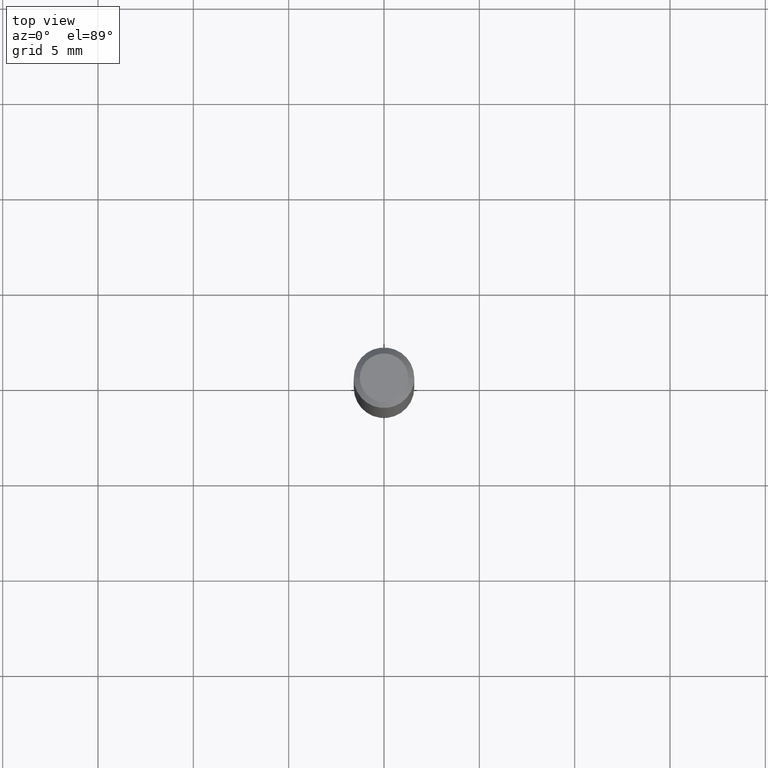
[diagram: clean part render]
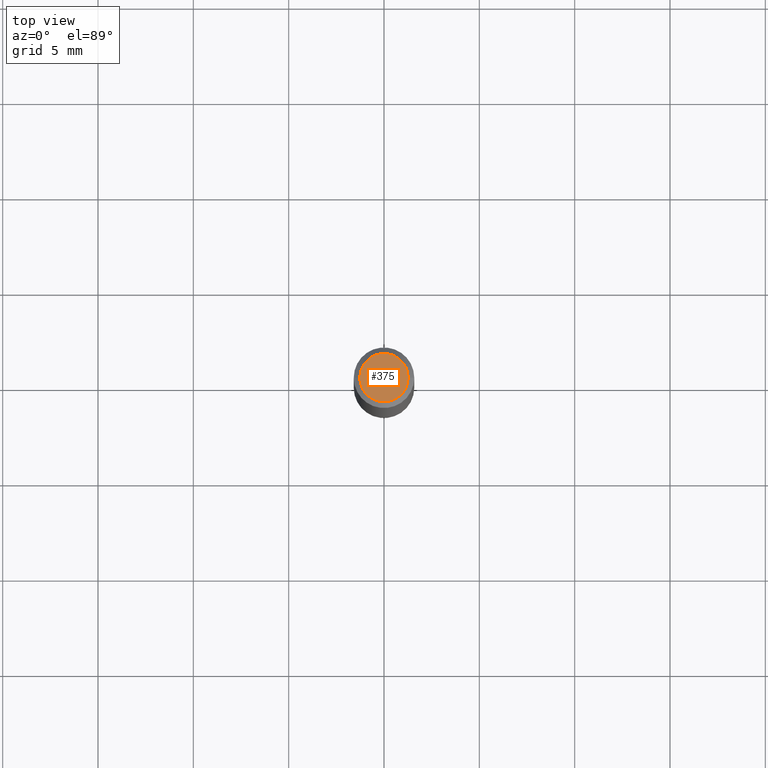
[diagram: same view with one face highlighted and labeled with its STEP entity id]
A machine part, top view. The second image highlights one B-rep face of the part: STEP entity #375.
In plain terms, the highlighted planar face has unit normal (0, -0, -1).
Its self-contained STEP definition (entity closure, byte-faithful):
#44 = DIRECTION ( 'NONE',  ( -2.445468806185136597E-29, 3.491481338843145583E-15, 1.000000000000000000 ) ) ;
#54 = AXIS2_PLACEMENT_3D ( 'NONE', #250, #44, #218 ) ;
#60 = DIRECTION ( 'NONE',  ( -1.000000000000000000, 6.982962677686265922E-15, -4.876176775795935793E-29 ) ) ;
#64 = DIRECTION ( 'NONE',  ( 2.438088387897960049E-29, -3.491481338843145188E-15, -1.000000000000000000 ) ) ;
#79 = ORIENTED_EDGE ( 'NONE', *, *, #374, .T. ) ;
#118 = VERTEX_POINT ( 'NONE', #138 ) ;
#123 = CIRCLE ( 'NONE', #385, 0.04999999999999999584 ) ;
#135 = ORIENTED_EDGE ( 'NONE', *, *, #235, .T. ) ;
#138 = CARTESIAN_POINT ( 'NONE',  ( 0.04999999999999999584, -4.077247707424184705E-16, 3.380025165673154903E-19 ) ) ;
#141 = VERTEX_POINT ( 'NONE', #429 ) ;
#218 = DIRECTION ( 'NONE',  ( 1.000000000000000000, -6.982962677686265922E-15, 4.876194921942043128E-29 ) ) ;
#235 = EDGE_CURVE ( 'NONE', #141, #118, #287, .T. ) ;
#250 = CARTESIAN_POINT ( 'NONE',  ( -8.265746106709734507E-48, 1.180129479067563789E-33, 3.380025165646692144E-19 ) ) ;
#262 = FACE_OUTER_BOUND ( 'NONE', #297, .T. ) ;
#287 = CIRCLE ( 'NONE', #54, 0.04999999999999999584 ) ;
#297 = EDGE_LOOP ( 'NONE', ( #135, #79 ) ) ;
#325 = AXIS2_PLACEMENT_3D ( 'NONE', #412, #64, #60 ) ;
#346 = DIRECTION ( 'NONE',  ( -2.445468806185136597E-29, 3.491481338843145583E-15, 1.000000000000000000 ) ) ;
#374 = EDGE_CURVE ( 'NONE', #118, #141, #123, .T. ) ;
#375 = ADVANCED_FACE ( 'NONE', ( #262 ), #445, .F. ) ;
#385 = AXIS2_PLACEMENT_3D ( 'NONE', #480, #346, #486 ) ;
#412 = CARTESIAN_POINT ( 'NONE',  ( -4.132873053354867254E-48, 5.900647395337818946E-34, 1.690012582823346072E-19 ) ) ;
#429 = CARTESIAN_POINT ( 'NONE',  ( -0.04999999999999999584, 3.709698922520826725E-16, 3.380025165621512536E-19 ) ) ;
#445 = PLANE ( 'NONE',  #325 ) ;
#480 = CARTESIAN_POINT ( 'NONE',  ( -8.265746106709734507E-48, 1.180129479067563789E-33, 3.380025165646692144E-19 ) ) ;
#486 = DIRECTION ( 'NONE',  ( 1.000000000000000000, -6.982962677686265922E-15, 4.876194921942043128E-29 ) ) ;